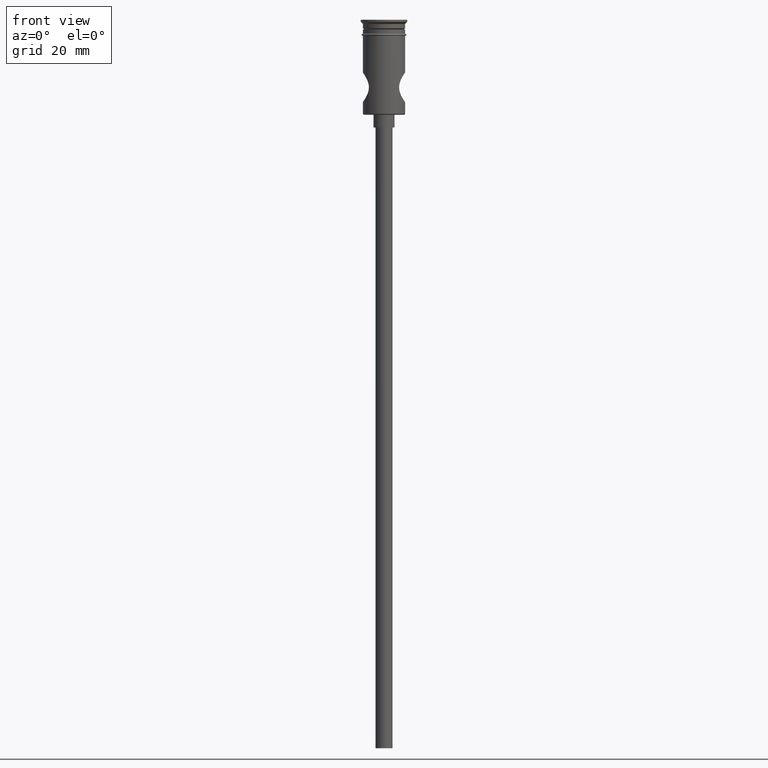
[diagram: clean part render]
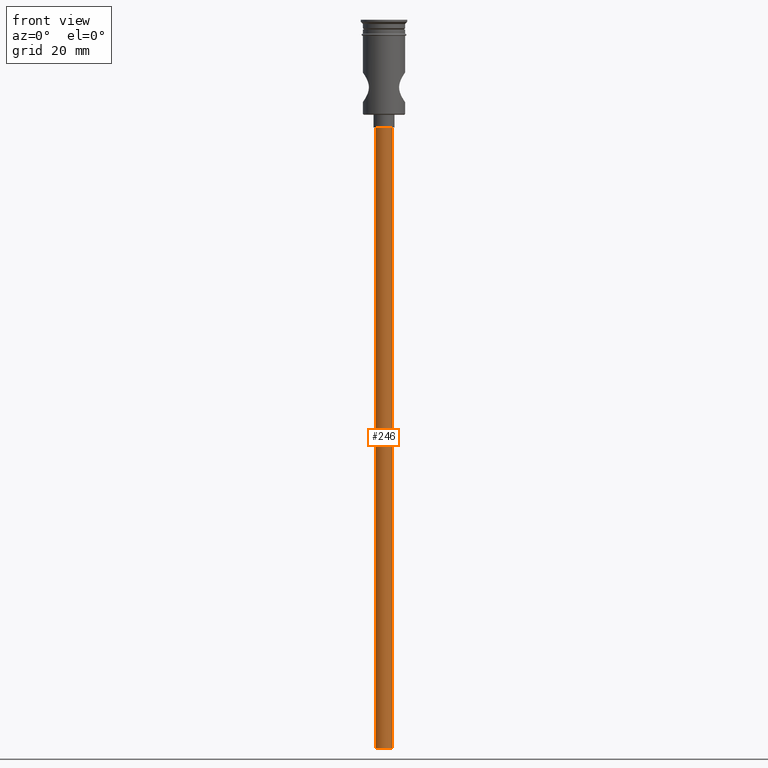
[diagram: same view with one face highlighted and labeled with its STEP entity id]
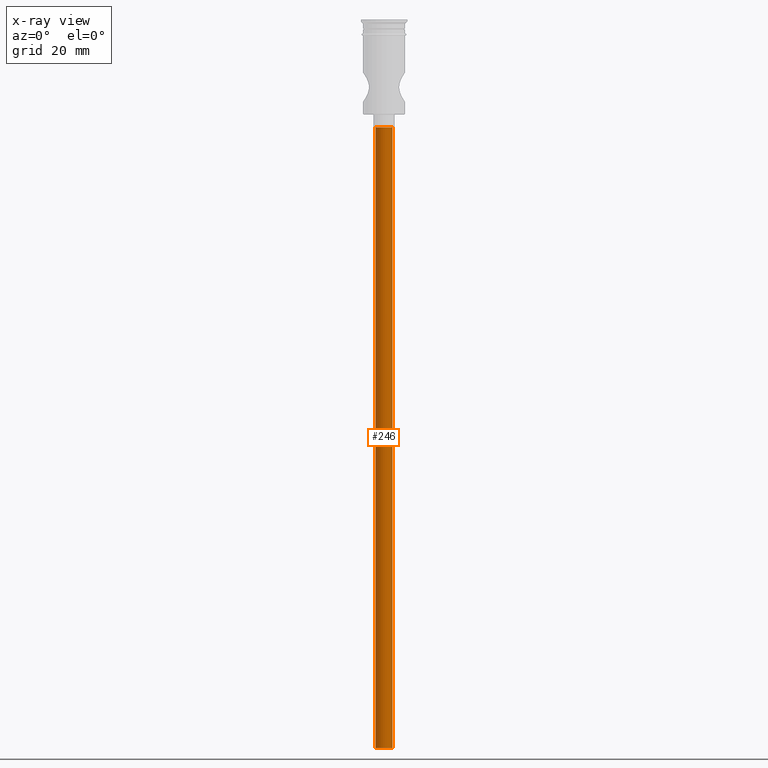
[diagram: x-ray of the same camera — body ghosted, the highlighted face saturated]
A machine part, front view. The second image highlights one B-rep face of the part: STEP entity #246.
The next image is the same camera in x-ray: the body ghosted, the highlighted face saturated — about 0% of this face is hidden behind the body in this view.
In plain terms, the highlighted cylindrical surface (edge-blend (fillet) strip) has radius 2 mm, axis along (-0, -0, 1).
Its self-contained STEP definition (entity closure, byte-faithful):
#61 = DIRECTION ( 'NONE',  ( -0.000000000000000000, -0.000000000000000000, 1.000000000000000000 ) ) ;
#62 = AXIS2_PLACEMENT_3D ( 'NONE', #857, #85, #212 ) ;
#73 = CARTESIAN_POINT ( 'NONE',  ( 0.000000000000000000, 0.000000000000000000, -172.5000000000000000 ) ) ;
#85 = DIRECTION ( 'NONE',  ( 0.000000000000000000, 0.000000000000000000, -1.000000000000000000 ) ) ;
#88 = CIRCLE ( 'NONE', #280, 2.000000000000000000 ) ;
#124 = CARTESIAN_POINT ( 'NONE',  ( 0.000000000000000000, 0.000000000000000000, -172.5000000000000000 ) ) ;
#212 = DIRECTION ( 'NONE',  ( -1.000000000000000000, 0.000000000000000000, 0.000000000000000000 ) ) ;
#245 = LINE ( 'NONE', #405, #457 ) ;
#246 = ADVANCED_FACE ( 'NONE', ( #698 ), #568, .T. ) ;
#254 = EDGE_CURVE ( 'NONE', #1124, #1292, #245, .T. ) ;
#265 = VERTEX_POINT ( 'NONE', #831 ) ;
#280 = AXIS2_PLACEMENT_3D ( 'NONE', #73, #610, #499 ) ;
#284 = DIRECTION ( 'NONE',  ( -0.000000000000000000, -0.000000000000000000, 1.000000000000000000 ) ) ;
#335 = ORIENTED_EDGE ( 'NONE', *, *, #1175, .F. ) ;
#338 = EDGE_CURVE ( 'NONE', #265, #1043, #732, .T. ) ;
#405 = CARTESIAN_POINT ( 'NONE',  ( -2.000000000000000000, 2.449293598294706414E-16, -172.5000000000000000 ) ) ;
#411 = ORIENTED_EDGE ( 'NONE', *, *, #1299, .T. ) ;
#457 = VECTOR ( 'NONE', #284, 1000.000000000000000 ) ;
#459 = DIRECTION ( 'NONE',  ( -0.000000000000000000, -0.000000000000000000, 1.000000000000000000 ) ) ;
#499 = DIRECTION ( 'NONE',  ( -1.000000000000000000, 0.000000000000000000, 0.000000000000000000 ) ) ;
#540 = CARTESIAN_POINT ( 'NONE',  ( -2.000000000000000000, 2.449293598294706414E-16, -172.5000000000000000 ) ) ;
#552 = ORIENTED_EDGE ( 'NONE', *, *, #338, .T. ) ;
#568 = CYLINDRICAL_SURFACE ( 'NONE', #1082, 2.000000000000000000 ) ;
#610 = DIRECTION ( 'NONE',  ( 0.000000000000000000, 0.000000000000000000, -1.000000000000000000 ) ) ;
#698 = FACE_OUTER_BOUND ( 'NONE', #1034, .T. ) ;
#732 = LINE ( 'NONE', #1047, #912 ) ;
#822 = CARTESIAN_POINT ( 'NONE',  ( -2.000000000000000000, 2.449293598294706414E-16, -25.50000000000000000 ) ) ;
#831 = CARTESIAN_POINT ( 'NONE',  ( 2.000000000000000000, 0.000000000000000000, -172.5000000000000000 ) ) ;
#857 = CARTESIAN_POINT ( 'NONE',  ( 0.000000000000000000, 0.000000000000000000, -25.50000000000000000 ) ) ;
#895 = DIRECTION ( 'NONE',  ( 1.000000000000000000, 0.000000000000000000, 0.000000000000000000 ) ) ;
#912 = VECTOR ( 'NONE', #61, 1000.000000000000000 ) ;
#1034 = EDGE_LOOP ( 'NONE', ( #1370, #335, #552, #411 ) ) ;
#1038 = CIRCLE ( 'NONE', #62, 2.000000000000000000 ) ;
#1043 = VERTEX_POINT ( 'NONE', #1255 ) ;
#1047 = CARTESIAN_POINT ( 'NONE',  ( 2.000000000000000000, 0.000000000000000000, -172.5000000000000000 ) ) ;
#1082 = AXIS2_PLACEMENT_3D ( 'NONE', #124, #459, #895 ) ;
#1124 = VERTEX_POINT ( 'NONE', #540 ) ;
#1175 = EDGE_CURVE ( 'NONE', #265, #1124, #88, .T. ) ;
#1255 = CARTESIAN_POINT ( 'NONE',  ( 2.000000000000000000, 0.000000000000000000, -25.50000000000000000 ) ) ;
#1292 = VERTEX_POINT ( 'NONE', #822 ) ;
#1299 = EDGE_CURVE ( 'NONE', #1043, #1292, #1038, .T. ) ;
#1370 = ORIENTED_EDGE ( 'NONE', *, *, #254, .F. ) ;